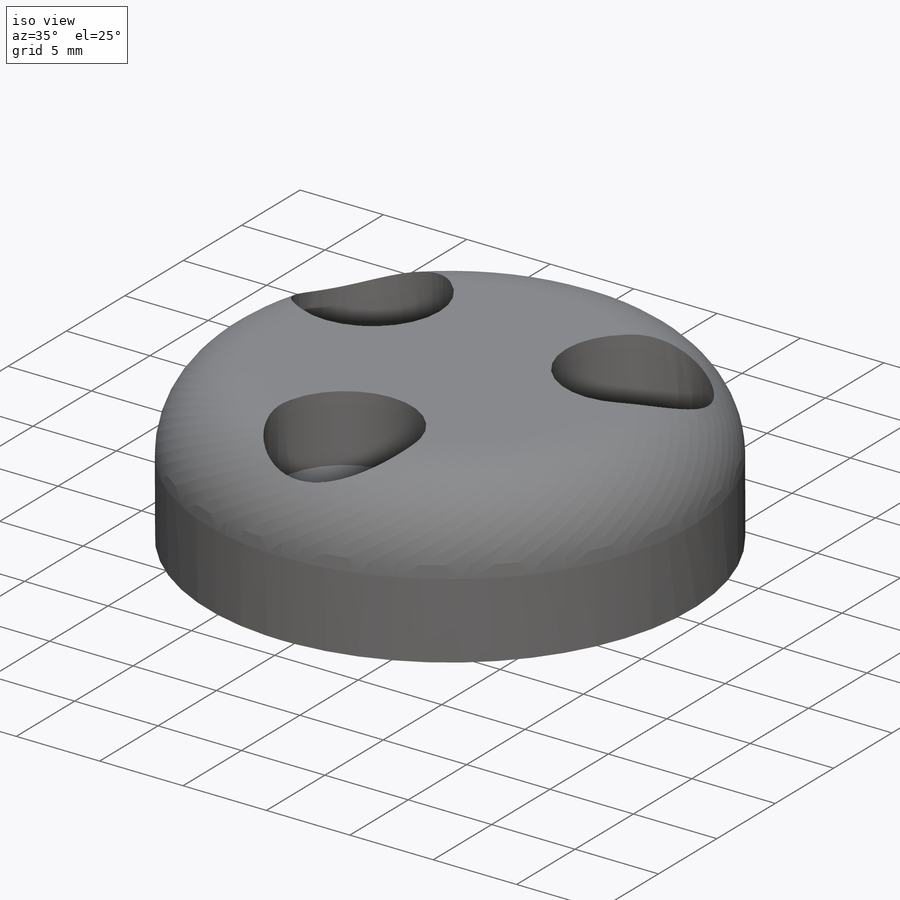
[diagram: iso view]
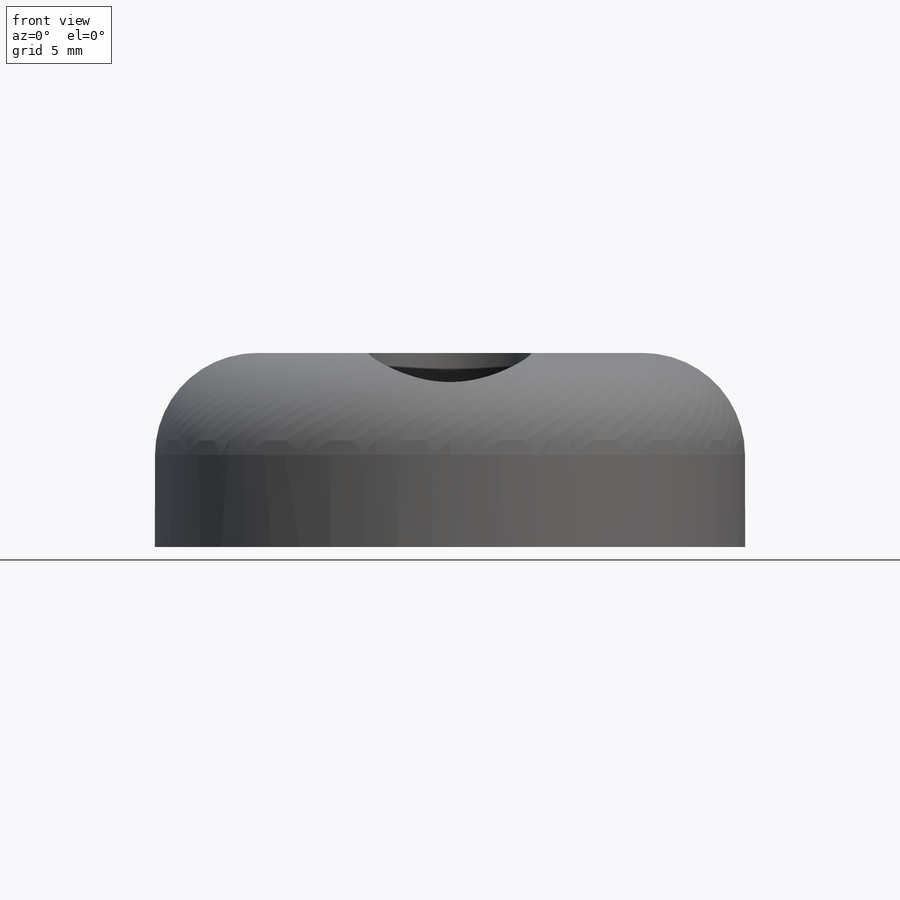
[diagram: front view]
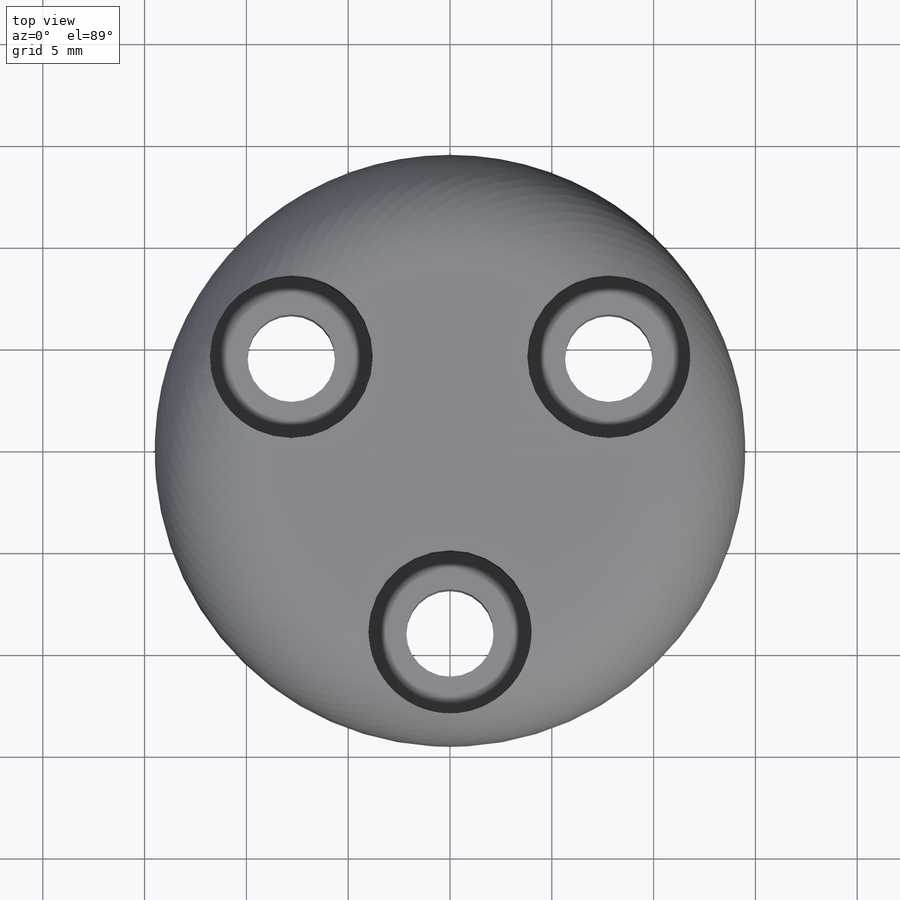
[diagram: top view]
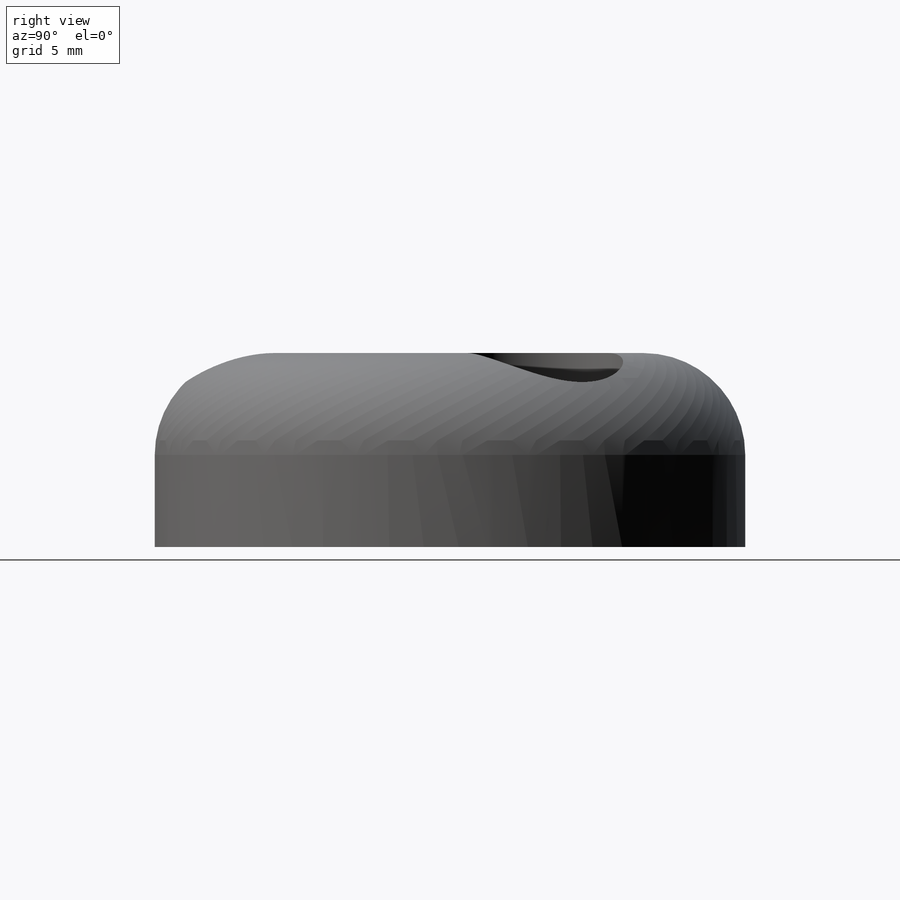
[diagram: right view]
SOLIDWORKS PART (.sldprt)
format: sldprt  version: not decoded by parser v0  size: 311,808 bytes
history: native  units: mm
features: sketch x6, cut_extrude x3, pattern_circular x2, material x1, extrude x1, hole x1, fillet x1 (+16 scaffold rows collapsed)
feature tree (31):
  scaffold x16  (default folders/planes/origin — collapsed)
  material  "Stainless Steel (ferritic)"
  sketch  "Sketch1"  dims[D1=29.0mm]
  extrude  "Boss-Extrude1"  Depth=9.525mm
  sketch  "Sketch2"  dims[D1=7.0mm]
  cut_extrude  "Cut-Extrude1"  Depth=3.5mm
  sketch  "Sketch3"  dims[D1=6.25mm]
  cut_extrude  "Cut-Extrude2"  Depth=5mm
  hole  "CBORE for M4 SHCS1"  Diameter=4.3mm Depth=9.525mm
  sketch  "Sketch5"  dims[D1=9.0mm]
  sketch  "Sketch4"  dims[hole-wizard template sketch: 42 standard entries collapsed; hole parameters kept: c12.Thru Hole Depth=9.525mm c12.C'Bore Dia.=8.0mm c12.C'Bore Depth=4.0mm]
  pattern_circular  "CirPattern1"  Count=3 Angle=360deg
  fillet  "Fillet1"  Radius=5mm
  sketch  "Sketch6"  dims[c1.D1=5.0mm c1.D2=~7.621606mm c2.D2=45.0deg c2.D3=~8.97974mm c3.D3=7.5deg]
  cut_extrude  "Cut-Extrude3"  Depth=5mm
  pattern_circular  "CirPattern2"  Count=3 Angle=360deg
decode coverage: 14 of 14 modeling features carry decoded parameters
note: ~ marks probable driven/reference dimensions
note: suppression state not decoded; provenance and decode notes live in map.json
